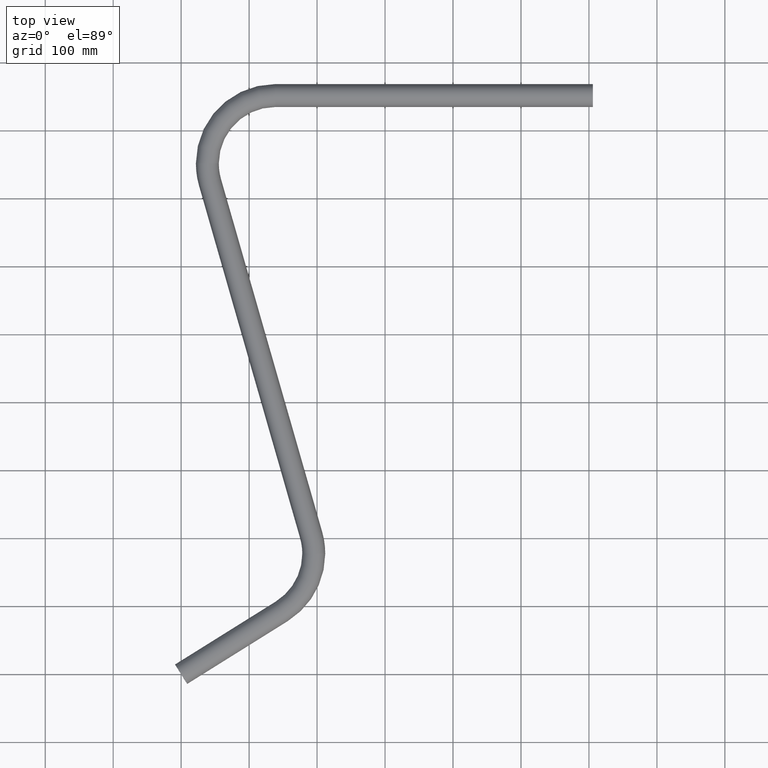
[diagram: clean part render]
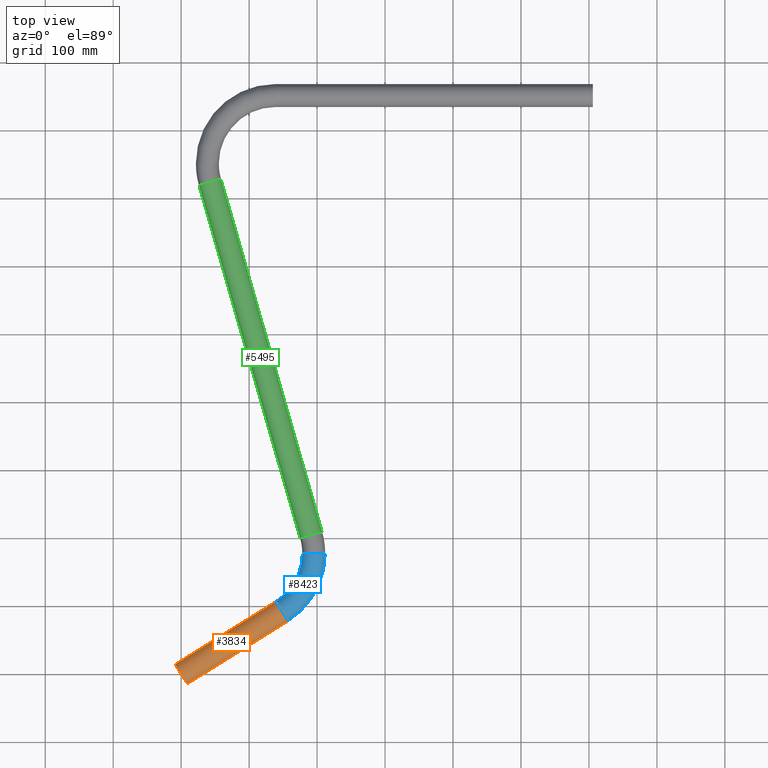
[diagram: same view with three faces highlighted in distinct colors, each labeled with its STEP entity id]
A machine part, top view with three faces highlighted in distinct colors.
Their STEP definitions:

[orange] entity #3834 — the highlighted cylindrical surface (edge-blend (fillet) strip) has radius 16.85 mm, axis along (-0.848, -0.5299, -0).
#428 = LINE ( 'NONE', #5205, #4884 ) ;
#750 = FACE_OUTER_BOUND ( 'NONE', #2879, .T. ) ;
#974 = DIRECTION ( 'NONE',  ( -0.5299192642332820600, 0.8480480961563778800, 0.0000000000000000000 ) ) ;
#1358 = CARTESIAN_POINT ( 'NONE',  ( 148.1070162850267600, 92.54753527926689600, 0.0000000000000000000 ) ) ;
#1705 = DIRECTION ( 'NONE',  ( -0.8480480961563795500, -0.5299192642332791700, -0.0000000000000000000 ) ) ;
#1964 = ORIENTED_EDGE ( 'NONE', *, *, #11484, .T. ) ;
#2069 = VERTEX_POINT ( 'NONE', #7522 ) ;
#2073 = VERTEX_POINT ( 'NONE', #5711 ) ;
#2311 = DIRECTION ( 'NONE',  ( 0.5299192642332701800, -0.8480480961563851000, 0.0000000000000000000 ) ) ;
#2641 = DIRECTION ( 'NONE',  ( 0.5299192642332788400, -0.8480480961563798800, 0.0000000000000000000 ) ) ;
#2879 = EDGE_LOOP ( 'NONE', ( #5075, #3601, #1964, #4740 ) ) ;
#3601 = ORIENTED_EDGE ( 'NONE', *, *, #4921, .T. ) ;
#3784 = CARTESIAN_POINT ( 'NONE',  ( 139.1778766826961700, 106.8371456995019900, 2.063529856563290200E-015 ) ) ;
#3834 = ADVANCED_FACE ( 'NONE', ( #750 ), #5184, .T. ) ;
#4240 = CARTESIAN_POINT ( 'NONE',  ( -8.929139602330826300, 14.28961042023493800, 2.063529856563290200E-015 ) ) ;
#4443 = LINE ( 'NONE', #6959, #4723 ) ;
#4662 = AXIS2_PLACEMENT_3D ( 'NONE', #12170, #6609, #974 ) ;
#4723 = VECTOR ( 'NONE', #7750, 999.9999999999998900 ) ;
#4740 = ORIENTED_EDGE ( 'NONE', *, *, #7880, .F. ) ;
#4884 = VECTOR ( 'NONE', #9888, 999.9999999999998900 ) ;
#4921 = EDGE_CURVE ( 'NONE', #11482, #9779, #428, .T. ) ;
#5075 = ORIENTED_EDGE ( 'NONE', *, *, #10158, .F. ) ;
#5184 = CYLINDRICAL_SURFACE ( 'NONE', #10916, 16.84999999999999100 ) ;
#5205 = CARTESIAN_POINT ( 'NONE',  ( 139.1778766826959100, 106.8371456995018500, 2.063529856563290200E-015 ) ) ;
#5711 = CARTESIAN_POINT ( 'NONE',  ( 157.0361558873573500, 78.25792485903181700, 0.0000000000000000000 ) ) ;
#6609 = DIRECTION ( 'NONE',  ( 0.8480480961563778800, 0.5299192642332820600, -3.826221258505972300E-017 ) ) ;
#6818 = AXIS2_PLACEMENT_3D ( 'NONE', #1358, #7885, #2311 ) ;
#6959 = CARTESIAN_POINT ( 'NONE',  ( 157.0361558873573800, 78.25792485903184600, 0.0000000000000000000 ) ) ;
#7301 = CARTESIAN_POINT ( 'NONE',  ( 148.1070162850266500, 92.54753527926683900, 0.0000000000000000000 ) ) ;
#7522 = CARTESIAN_POINT ( 'NONE',  ( 8.929139602330771200, -14.28961042023498100, 0.0000000000000000000 ) ) ;
#7750 = DIRECTION ( 'NONE',  ( -0.8480480961563796600, -0.5299192642332791700, -0.0000000000000000000 ) ) ;
#7880 = EDGE_CURVE ( 'NONE', #2073, #2069, #4443, .T. ) ;
#7885 = DIRECTION ( 'NONE',  ( 0.8480480961563852100, 0.5299192642332701800, -0.0000000000000000000 ) ) ;
#9612 = CIRCLE ( 'NONE', #4662, 16.85000000000000100 ) ;
#9779 = VERTEX_POINT ( 'NONE', #4240 ) ;
#9888 = DIRECTION ( 'NONE',  ( -0.8480480961563796600, -0.5299192642332791700, -0.0000000000000000000 ) ) ;
#10158 = EDGE_CURVE ( 'NONE', #11482, #2073, #10428, .T. ) ;
#10428 = CIRCLE ( 'NONE', #6818, 16.85000000000000100 ) ;
#10916 = AXIS2_PLACEMENT_3D ( 'NONE', #7301, #1705, #2641 ) ;
#11482 = VERTEX_POINT ( 'NONE', #3784 ) ;
#11484 = EDGE_CURVE ( 'NONE', #9779, #2069, #9612, .T. ) ;
#12170 = CARTESIAN_POINT ( 'NONE',  ( -2.775557561562891400E-014, -1.387778780781445700E-014, 0.0000000000000000000 ) ) ;

[blue] entity #8423 — the highlighted toroidal blend (fillet) surface has major radius 100 mm and minor (blend) radius 16.85 mm.
#624 = DIRECTION ( 'NONE',  ( 0.0000000000000000000, 0.0000000000000000000, -1.000000000000000000 ) ) ;
#953 = DIRECTION ( 'NONE',  ( 1.000000000000000000, 0.0000000000000000000, 0.0000000000000000000 ) ) ;
#1358 = CARTESIAN_POINT ( 'NONE',  ( 148.1070162850267600, 92.54753527926689600, 0.0000000000000000000 ) ) ;
#1504 = FACE_OUTER_BOUND ( 'NONE', #3680, .T. ) ;
#1641 = AXIS2_PLACEMENT_3D ( 'NONE', #12147, #6584, #953 ) ;
#2073 = VERTEX_POINT ( 'NONE', #5711 ) ;
#2311 = DIRECTION ( 'NONE',  ( 0.5299192642332701800, -0.8480480961563851000, 0.0000000000000000000 ) ) ;
#2498 = AXIS2_PLACEMENT_3D ( 'NONE', #11844, #6265, #624 ) ;
#3264 = CIRCLE ( 'NONE', #3908, 83.15000000000006300 ) ;
#3680 = EDGE_LOOP ( 'NONE', ( #4020, #11751, #7101, #7662 ) ) ;
#3784 = CARTESIAN_POINT ( 'NONE',  ( 139.1778766826961700, 106.8371456995019900, 2.063529856563290200E-015 ) ) ;
#3908 = AXIS2_PLACEMENT_3D ( 'NONE', #3926, #10438, #4869 ) ;
#3926 = CARTESIAN_POINT ( 'NONE',  ( 95.11508986169970100, 177.3523448949054900, -2.063529856563290200E-015 ) ) ;
#4020 = ORIENTED_EDGE ( 'NONE', *, *, #10158, .T. ) ;
#4444 = DIRECTION ( 'NONE',  ( 0.0000000000000000000, 0.0000000000000000000, 1.000000000000000000 ) ) ;
#4566 = CARTESIAN_POINT ( 'NONE',  ( 95.11508986169970100, 177.3523448949054900, 0.0000000000000000000 ) ) ;
#4869 = DIRECTION ( 'NONE',  ( 1.000000000000000000, 0.0000000000000000000, 0.0000000000000000000 ) ) ;
#5608 = AXIS2_PLACEMENT_3D ( 'NONE', #4566, #4444, #11071 ) ;
#5711 = CARTESIAN_POINT ( 'NONE',  ( 157.0361558873573500, 78.25792485903181700, 0.0000000000000000000 ) ) ;
#5972 = VERTEX_POINT ( 'NONE', #6879 ) ;
#6172 = TOROIDAL_SURFACE ( 'NONE', #5608, 100.0000000000000600, 16.85000000000000100 ) ;
#6265 = DIRECTION ( 'NONE',  ( 0.0000000000000000000, -1.000000000000000000, 0.0000000000000000000 ) ) ;
#6584 = DIRECTION ( 'NONE',  ( 0.0000000000000000000, 0.0000000000000000000, 1.000000000000000000 ) ) ;
#6818 = AXIS2_PLACEMENT_3D ( 'NONE', #1358, #7885, #2311 ) ;
#6879 = CARTESIAN_POINT ( 'NONE',  ( 211.9650898616997700, 177.3523448949054900, 0.0000000000000000000 ) ) ;
#7101 = ORIENTED_EDGE ( 'NONE', *, *, #8320, .T. ) ;
#7267 = CIRCLE ( 'NONE', #1641, 116.8500000000000700 ) ;
#7288 = EDGE_CURVE ( 'NONE', #11482, #7609, #3264, .T. ) ;
#7609 = VERTEX_POINT ( 'NONE', #8190 ) ;
#7662 = ORIENTED_EDGE ( 'NONE', *, *, #7288, .F. ) ;
#7885 = DIRECTION ( 'NONE',  ( 0.8480480961563852100, 0.5299192642332701800, -0.0000000000000000000 ) ) ;
#8190 = CARTESIAN_POINT ( 'NONE',  ( 178.2650898616997500, 177.3523448949054900, -2.063529856563289800E-015 ) ) ;
#8320 = EDGE_CURVE ( 'NONE', #5972, #7609, #12007, .T. ) ;
#8423 = ADVANCED_FACE ( 'NONE', ( #1504 ), #6172, .T. ) ;
#8885 = EDGE_CURVE ( 'NONE', #2073, #5972, #7267, .T. ) ;
#10158 = EDGE_CURVE ( 'NONE', #11482, #2073, #10428, .T. ) ;
#10428 = CIRCLE ( 'NONE', #6818, 16.85000000000000100 ) ;
#10438 = DIRECTION ( 'NONE',  ( 0.0000000000000000000, 0.0000000000000000000, 1.000000000000000000 ) ) ;
#11071 = DIRECTION ( 'NONE',  ( 1.000000000000000000, 0.0000000000000000000, 0.0000000000000000000 ) ) ;
#11482 = VERTEX_POINT ( 'NONE', #3784 ) ;
#11751 = ORIENTED_EDGE ( 'NONE', *, *, #8885, .T. ) ;
#11844 = CARTESIAN_POINT ( 'NONE',  ( 195.1150898616997700, 177.3523448949054900, 0.0000000000000000000 ) ) ;
#12007 = CIRCLE ( 'NONE', #2498, 16.85000000000000100 ) ;
#12147 = CARTESIAN_POINT ( 'NONE',  ( 95.11508986169970100, 177.3523448949054900, 0.0000000000000000000 ) ) ;

[green] entity #5495 — the highlighted cylindrical surface (edge-blend (fillet) strip) has radius 16.85 mm, axis along (-0.2756, 0.9613, 0).
#1030 = CARTESIAN_POINT ( 'NONE',  ( 26.21633487958419200, 719.2953395929409900, 0.0000000000000000000 ) ) ;
#1063 = CIRCLE ( 'NONE', #10100, 16.85000000000000100 ) ;
#1077 = VECTOR ( 'NONE', #2425, 1000.000000000000200 ) ;
#1737 = EDGE_CURVE ( 'NONE', #10446, #4857, #3578, .T. ) ;
#1831 = VERTEX_POINT ( 'NONE', #4010 ) ;
#1928 = DIRECTION ( 'NONE',  ( -0.2756373558170607800, 0.9612616959383011300, 0.0000000000000000000 ) ) ;
#2425 = DIRECTION ( 'NONE',  ( -0.2756373558170607800, 0.9612616959383011300, 0.0000000000000000000 ) ) ;
#2515 = DIRECTION ( 'NONE',  ( -0.2756373558170608400, 0.9612616959383013500, 0.0000000000000000000 ) ) ;
#2637 = EDGE_CURVE ( 'NONE', #1831, #10446, #1063, .T. ) ;
#3578 = LINE ( 'NONE', #6125, #1077 ) ;
#3611 = DIRECTION ( 'NONE',  ( -0.2756373558170595600, 0.9612616959383015700, -0.0000000000000000000 ) ) ;
#3673 = DIRECTION ( 'NONE',  ( -0.9612616959383010200, -0.2756373558170614500, 0.0000000000000000000 ) ) ;
#3721 = CARTESIAN_POINT ( 'NONE',  ( 207.4385190320903100, 209.5605699221289100, 2.063529856563290600E-015 ) ) ;
#3741 = AXIS2_PLACEMENT_3D ( 'NONE', #9199, #3611, #10133 ) ;
#3965 = ORIENTED_EDGE ( 'NONE', *, *, #8370, .F. ) ;
#4010 = CARTESIAN_POINT ( 'NONE',  ( 175.0439998789695700, 200.2715910310939200, 0.0000000000000000000 ) ) ;
#4033 = EDGE_LOOP ( 'NONE', ( #9055, #10938, #3965, #7047 ) ) ;
#4165 = EDGE_CURVE ( 'NONE', #1831, #11171, #8660, .T. ) ;
#4857 = VERTEX_POINT ( 'NONE', #9839 ) ;
#5495 = ADVANCED_FACE ( 'NONE', ( #8787 ), #11151, .T. ) ;
#6125 = CARTESIAN_POINT ( 'NONE',  ( 207.4385190320902600, 209.5605699221291000, 2.063529856563290600E-015 ) ) ;
#6179 = CARTESIAN_POINT ( 'NONE',  ( 191.2412594555299000, 204.9160804766116300, 0.0000000000000000000 ) ) ;
#7047 = ORIENTED_EDGE ( 'NONE', *, *, #4165, .F. ) ;
#7132 = AXIS2_PLACEMENT_3D ( 'NONE', #6179, #2515, #10821 ) ;
#7525 = CARTESIAN_POINT ( 'NONE',  ( 175.0439998789695200, 200.2715910310941200, 0.0000000000000000000 ) ) ;
#8370 = EDGE_CURVE ( 'NONE', #11171, #4857, #8641, .T. ) ;
#8590 = CARTESIAN_POINT ( 'NONE',  ( 191.2412594555299600, 204.9160804766114300, 0.0000000000000000000 ) ) ;
#8641 = CIRCLE ( 'NONE', #3741, 16.84999999999999100 ) ;
#8660 = LINE ( 'NONE', #7525, #11448 ) ;
#8787 = FACE_OUTER_BOUND ( 'NONE', #4033, .T. ) ;
#9055 = ORIENTED_EDGE ( 'NONE', *, *, #2637, .T. ) ;
#9199 = CARTESIAN_POINT ( 'NONE',  ( 42.41359445614453700, 723.9398290384585800, 0.0000000000000000000 ) ) ;
#9264 = DIRECTION ( 'NONE',  ( -0.2756373558170608400, 0.9612616959383013500, 0.0000000000000000000 ) ) ;
#9839 = CARTESIAN_POINT ( 'NONE',  ( 58.61085403270494300, 728.5843184839759500, 2.063529856563290600E-015 ) ) ;
#10100 = AXIS2_PLACEMENT_3D ( 'NONE', #8590, #9264, #3673 ) ;
#10133 = DIRECTION ( 'NONE',  ( 0.9612616959383020200, 0.2756373558170583400, 0.0000000000000000000 ) ) ;
#10446 = VERTEX_POINT ( 'NONE', #3721 ) ;
#10821 = DIRECTION ( 'NONE',  ( -0.9612616959383010200, -0.2756373558170614500, 0.0000000000000000000 ) ) ;
#10938 = ORIENTED_EDGE ( 'NONE', *, *, #1737, .T. ) ;
#11151 = CYLINDRICAL_SURFACE ( 'NONE', #7132, 16.85000000000000100 ) ;
#11171 = VERTEX_POINT ( 'NONE', #1030 ) ;
#11448 = VECTOR ( 'NONE', #1928, 1000.000000000000200 ) ;